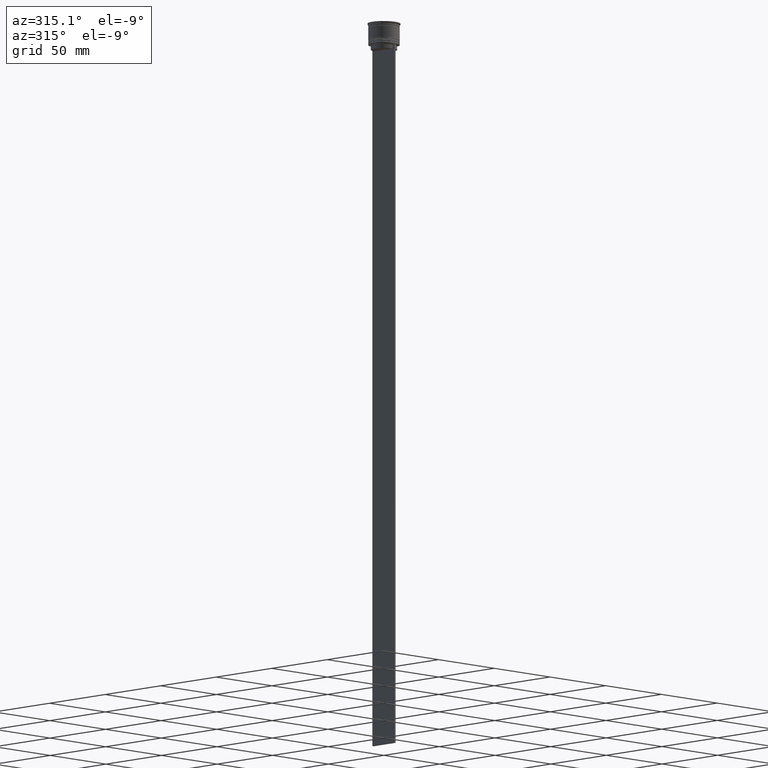
[diagram: clean part render]
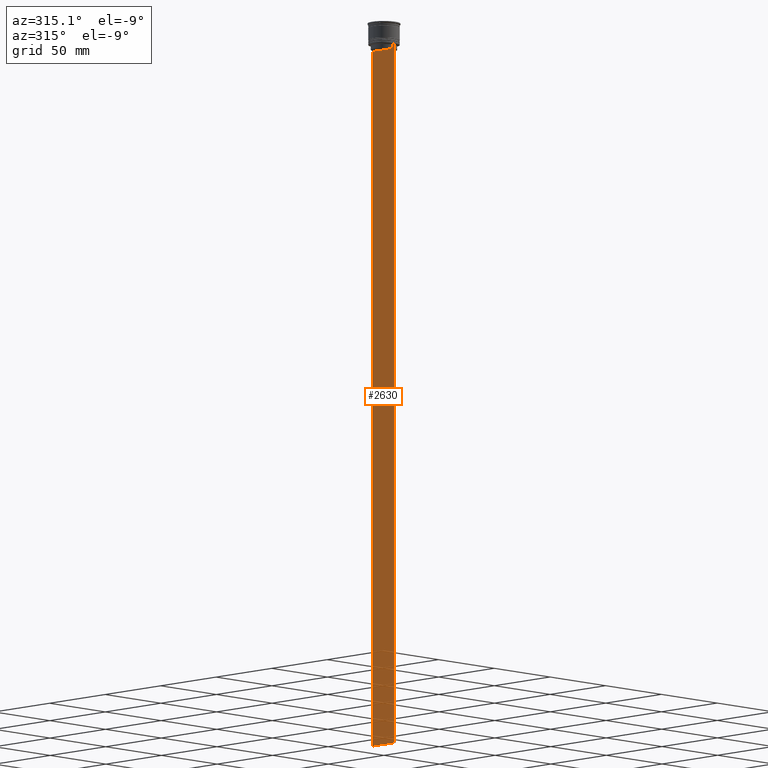
[diagram: same view with one face highlighted and labeled with its STEP entity id]
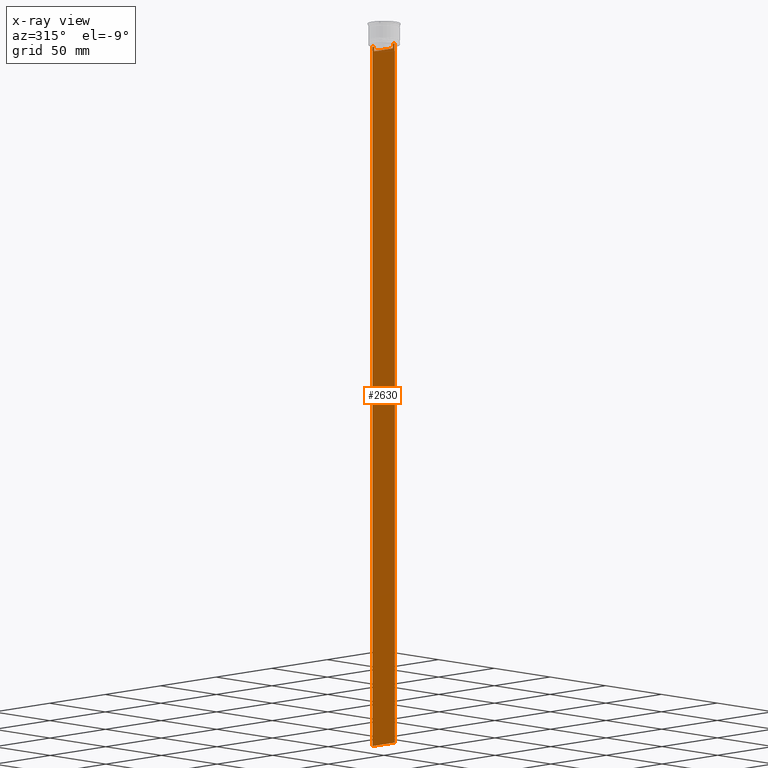
[diagram: x-ray of the same camera — body ghosted, the highlighted face saturated]
A machine part, auxiliary view. The second image highlights one B-rep face of the part: STEP entity #2630.
The next image is the same camera in x-ray: the body ghosted, the highlighted face saturated — about 0% of this face is hidden behind the body in this view.
In plain terms, the highlighted planar face has unit normal (-1, 0, 0).
Its self-contained STEP definition (entity closure, byte-faithful):
#11 = ORIENTED_EDGE ( 'NONE', *, *, #777, .F. ) ;
#96 = ORIENTED_EDGE ( 'NONE', *, *, #1256, .T. ) ;
#116 = VERTEX_POINT ( 'NONE', #2399 ) ;
#123 = DIRECTION ( 'NONE',  ( 0.000000000000000000, -1.000000000000000000, 0.000000000000000000 ) ) ;
#141 = EDGE_CURVE ( 'NONE', #1578, #515, #1157, .T. ) ;
#184 = ORIENTED_EDGE ( 'NONE', *, *, #2319, .F. ) ;
#192 = CARTESIAN_POINT ( 'NONE',  ( -0.5000000000000000000, 9.887365675446622149, -14.00000000000000178 ) ) ;
#197 = VERTEX_POINT ( 'NONE', #2586 ) ;
#303 = DIRECTION ( 'NONE',  ( 0.000000000000000000, -1.000000000000000000, 0.000000000000000000 ) ) ;
#311 = VERTEX_POINT ( 'NONE', #628 ) ;
#324 = CARTESIAN_POINT ( 'NONE',  ( -0.5000000000000000000, -10.00000000000000178, -14.00000000000000178 ) ) ;
#354 = VECTOR ( 'NONE', #492, 1000.000000000000000 ) ;
#386 = LINE ( 'NONE', #1607, #2289 ) ;
#396 = VERTEX_POINT ( 'NONE', #1995 ) ;
#451 = PLANE ( 'NONE',  #1812 ) ;
#474 = CARTESIAN_POINT ( 'NONE',  ( -0.5000000000000000000, -10.00000000000000178, 6.024984394500783047 ) ) ;
#475 = CARTESIAN_POINT ( 'NONE',  ( -0.5000000000000000000, -8.552060194457769882, -14.33334167772667200 ) ) ;
#491 = VECTOR ( 'NONE', #303, 1000.000000000000000 ) ;
#492 = DIRECTION ( 'NONE',  ( 0.000000000000000000, -1.000000000000000000, 0.000000000000000000 ) ) ;
#515 = VERTEX_POINT ( 'NONE', #192 ) ;
#540 = ORIENTED_EDGE ( 'NONE', *, *, #2037, .F. ) ;
#565 = LINE ( 'NONE', #1396, #741 ) ;
#595 = CARTESIAN_POINT ( 'NONE',  ( -0.5000000000000000000, -8.385105843100616241, -14.50000000000000000 ) ) ;
#628 = CARTESIAN_POINT ( 'NONE',  ( -0.5000000000000000000, 9.999999999999998224, -464.0000000000000000 ) ) ;
#642 = VERTEX_POINT ( 'NONE', #2362 ) ;
#668 = CARTESIAN_POINT ( 'NONE',  ( -0.5000000000000000000, -8.385105843100616241, -14.50000000000000000 ) ) ;
#719 = ORIENTED_EDGE ( 'NONE', *, *, #2284, .F. ) ;
#725 = CARTESIAN_POINT ( 'NONE',  ( -0.5000000000000000000, -10.00000000000000178, -14.00000000000000178 ) ) ;
#741 = VECTOR ( 'NONE', #2009, 1000.000000000000000 ) ;
#769 = CARTESIAN_POINT ( 'NONE',  ( -0.5000000000000000000, 8.719005771582351016, -14.16667453442324742 ) ) ;
#777 = EDGE_CURVE ( 'NONE', #1069, #1857, #851, .T. ) ;
#780 = DIRECTION ( 'NONE',  ( 0.000000000000000000, -1.000000000000000000, 0.000000000000000000 ) ) ;
#785 = VECTOR ( 'NONE', #849, 1000.000000000000000 ) ;
#849 = DIRECTION ( 'NONE',  ( 0.000000000000000000, 1.000000000000000000, 0.000000000000000000 ) ) ;
#851 = B_SPLINE_CURVE_WITH_KNOTS ( 'NONE', 3,
 ( #668, #475, #1718, #2131 ),
 .UNSPECIFIED., .F., .F.,
 ( 4, 4 ),
 ( 0.03898465126933132324, 0.03969388910599660342 ),
 .UNSPECIFIED. ) ;
#854 = VERTEX_POINT ( 'NONE', #1352 ) ;
#868 = DIRECTION ( 'NONE',  ( -1.000000000000000000, 0.000000000000000000, 0.000000000000000000 ) ) ;
#878 = VECTOR ( 'NONE', #2443, 1000.000000000000000 ) ;
#887 = VERTEX_POINT ( 'NONE', #1606 ) ;
#888 = DIRECTION ( 'NONE',  ( 0.000000000000000000, -1.000000000000000000, 0.000000000000000000 ) ) ;
#892 = CARTESIAN_POINT ( 'NONE',  ( -0.5000000000000000000, -10.00000000000000178, -14.00000000000000178 ) ) ;
#898 = VERTEX_POINT ( 'NONE', #2188 ) ;
#977 = CARTESIAN_POINT ( 'NONE',  ( -0.5000000000000000000, 8.885943956609230199, -14.00000000000000178 ) ) ;
#986 = LINE ( 'NONE', #2222, #878 ) ;
#1014 = VECTOR ( 'NONE', #2182, 1000.000000000000000 ) ;
#1017 = EDGE_CURVE ( 'NONE', #898, #197, #986, .T. ) ;
#1069 = VERTEX_POINT ( 'NONE', #595 ) ;
#1091 = LINE ( 'NONE', #892, #1603 ) ;
#1129 = CARTESIAN_POINT ( 'NONE',  ( -0.5000000000000000000, -10.00000000000000178, -14.00000000000000178 ) ) ;
#1157 = LINE ( 'NONE', #324, #1952 ) ;
#1256 = EDGE_CURVE ( 'NONE', #1578, #311, #565, .T. ) ;
#1327 = B_SPLINE_CURVE_WITH_KNOTS ( 'NONE', 3,
 ( #977, #769, #2599, #2187 ),
 .UNSPECIFIED., .F., .F.,
 ( 4, 4 ),
 ( 0.01511546479386908018, 0.01582316445439079997 ),
 .UNSPECIFIED. ) ;
#1330 = EDGE_CURVE ( 'NONE', #642, #898, #1521, .T. ) ;
#1334 = ORIENTED_EDGE ( 'NONE', *, *, #1467, .F. ) ;
#1352 = CARTESIAN_POINT ( 'NONE',  ( -0.5000000000000000000, 8.385105843100616241, -17.00000000000000000 ) ) ;
#1396 = CARTESIAN_POINT ( 'NONE',  ( -0.5000000000000000000, 9.999999999999998224, 6.024984394500783047 ) ) ;
#1413 = DIRECTION ( 'NONE',  ( -0.000000000000000000, -0.000000000000000000, 1.000000000000000000 ) ) ;
#1423 = LINE ( 'NONE', #2022, #2559 ) ;
#1445 = CARTESIAN_POINT ( 'NONE',  ( -0.5000000000000000000, 9.999999999999994671, -14.00000000000000178 ) ) ;
#1452 = EDGE_CURVE ( 'NONE', #515, #116, #1091, .T. ) ;
#1467 = EDGE_CURVE ( 'NONE', #197, #311, #2487, .T. ) ;
#1521 = LINE ( 'NONE', #1129, #354 ) ;
#1577 = ORIENTED_EDGE ( 'NONE', *, *, #2465, .F. ) ;
#1578 = VERTEX_POINT ( 'NONE', #1445 ) ;
#1603 = VECTOR ( 'NONE', #888, 1000.000000000000000 ) ;
#1606 = CARTESIAN_POINT ( 'NONE',  ( -0.5000000000000000000, -8.385105843100616241, -17.00000000000000000 ) ) ;
#1607 = CARTESIAN_POINT ( 'NONE',  ( -0.5000000000000000000, -8.385105843100616241, 0.000000000000000000 ) ) ;
#1628 = ORIENTED_EDGE ( 'NONE', *, *, #141, .F. ) ;
#1691 = DIRECTION ( 'NONE',  ( 0.000000000000000000, 0.000000000000000000, 1.000000000000000000 ) ) ;
#1704 = ORIENTED_EDGE ( 'NONE', *, *, #2660, .F. ) ;
#1705 = FACE_OUTER_BOUND ( 'NONE', #1961, .T. ) ;
#1718 = CARTESIAN_POINT ( 'NONE',  ( -0.5000000000000000000, -8.719005764482790966, -14.16667454151159689 ) ) ;
#1782 = ORIENTED_EDGE ( 'NONE', *, *, #1017, .F. ) ;
#1791 = CARTESIAN_POINT ( 'NONE',  ( -0.5000000000000000000, -8.885943956609230199, -14.00000000000000178 ) ) ;
#1812 = AXIS2_PLACEMENT_3D ( 'NONE', #474, #868, #1691 ) ;
#1857 = VERTEX_POINT ( 'NONE', #1791 ) ;
#1952 = VECTOR ( 'NONE', #123, 1000.000000000000000 ) ;
#1961 = EDGE_LOOP ( 'NONE', ( #719, #1996, #1628, #96, #1334, #1782, #2432, #184, #11, #540, #1577, #1704 ) ) ;
#1977 = LINE ( 'NONE', #2129, #1014 ) ;
#1995 = CARTESIAN_POINT ( 'NONE',  ( -0.5000000000000000000, 8.385105843100616241, -14.50000000000000000 ) ) ;
#1996 = ORIENTED_EDGE ( 'NONE', *, *, #1452, .F. ) ;
#2009 = DIRECTION ( 'NONE',  ( 0.000000000000000000, 0.000000000000000000, -1.000000000000000000 ) ) ;
#2022 = CARTESIAN_POINT ( 'NONE',  ( -0.5000000000000000000, 8.400000000000003908, -17.00000000000000000 ) ) ;
#2037 = EDGE_CURVE ( 'NONE', #887, #1069, #386, .T. ) ;
#2129 = CARTESIAN_POINT ( 'NONE',  ( -0.5000000000000000000, 8.385105843100616241, 0.000000000000000000 ) ) ;
#2131 = CARTESIAN_POINT ( 'NONE',  ( -0.5000000000000000000, -8.885943956609230199, -14.00000000000000178 ) ) ;
#2171 = LINE ( 'NONE', #725, #491 ) ;
#2182 = DIRECTION ( 'NONE',  ( 0.000000000000000000, 0.000000000000000000, -1.000000000000000000 ) ) ;
#2187 = CARTESIAN_POINT ( 'NONE',  ( -0.5000000000000000000, 8.385105843100616241, -14.50000000000000000 ) ) ;
#2188 = CARTESIAN_POINT ( 'NONE',  ( -0.5000000000000000000, -10.00000000000000178, -14.00000000000000178 ) ) ;
#2222 = CARTESIAN_POINT ( 'NONE',  ( -0.5000000000000000000, -10.00000000000000178, 6.024984394500783047 ) ) ;
#2284 = EDGE_CURVE ( 'NONE', #116, #396, #1327, .T. ) ;
#2289 = VECTOR ( 'NONE', #1413, 1000.000000000000000 ) ;
#2319 = EDGE_CURVE ( 'NONE', #1857, #642, #2171, .T. ) ;
#2362 = CARTESIAN_POINT ( 'NONE',  ( -0.5000000000000000000, -9.887365675446622149, -14.00000000000000178 ) ) ;
#2399 = CARTESIAN_POINT ( 'NONE',  ( -0.5000000000000000000, 8.885943956609230199, -14.00000000000000178 ) ) ;
#2432 = ORIENTED_EDGE ( 'NONE', *, *, #1330, .F. ) ;
#2443 = DIRECTION ( 'NONE',  ( 0.000000000000000000, 0.000000000000000000, -1.000000000000000000 ) ) ;
#2448 = CARTESIAN_POINT ( 'NONE',  ( -0.5000000000000000000, -10.00000000000000178, -464.0000000000000000 ) ) ;
#2465 = EDGE_CURVE ( 'NONE', #854, #887, #1423, .T. ) ;
#2487 = LINE ( 'NONE', #2448, #785 ) ;
#2559 = VECTOR ( 'NONE', #780, 1000.000000000000000 ) ;
#2586 = CARTESIAN_POINT ( 'NONE',  ( -0.5000000000000000000, -10.00000000000000178, -464.0000000000000000 ) ) ;
#2599 = CARTESIAN_POINT ( 'NONE',  ( -0.5000000000000000000, 8.552060201981381837, -14.33334167021640226 ) ) ;
#2630 = ADVANCED_FACE ( 'NONE', ( #1705 ), #451, .T. ) ;
#2660 = EDGE_CURVE ( 'NONE', #396, #854, #1977, .T. ) ;